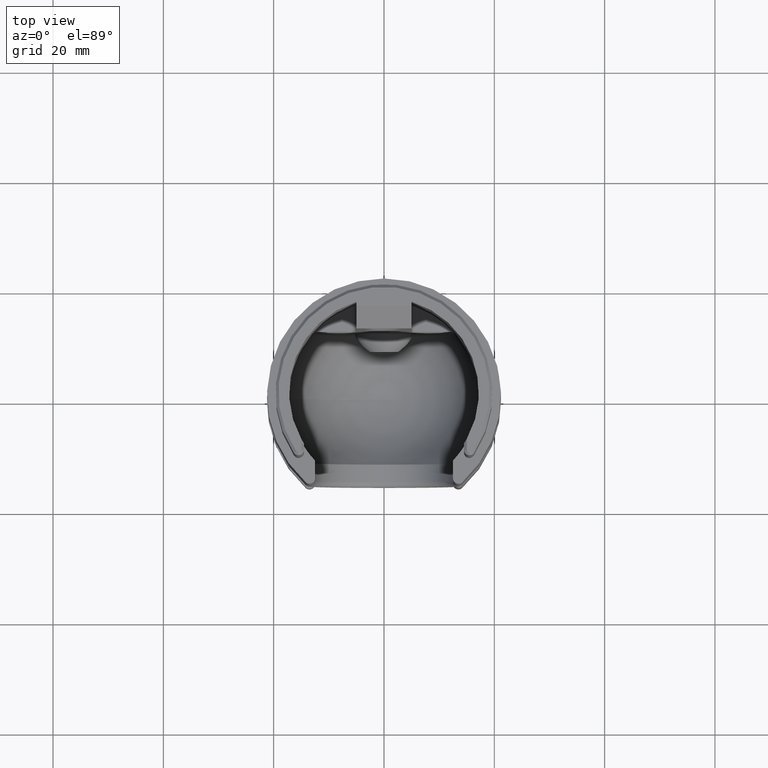
[diagram: clean part render]
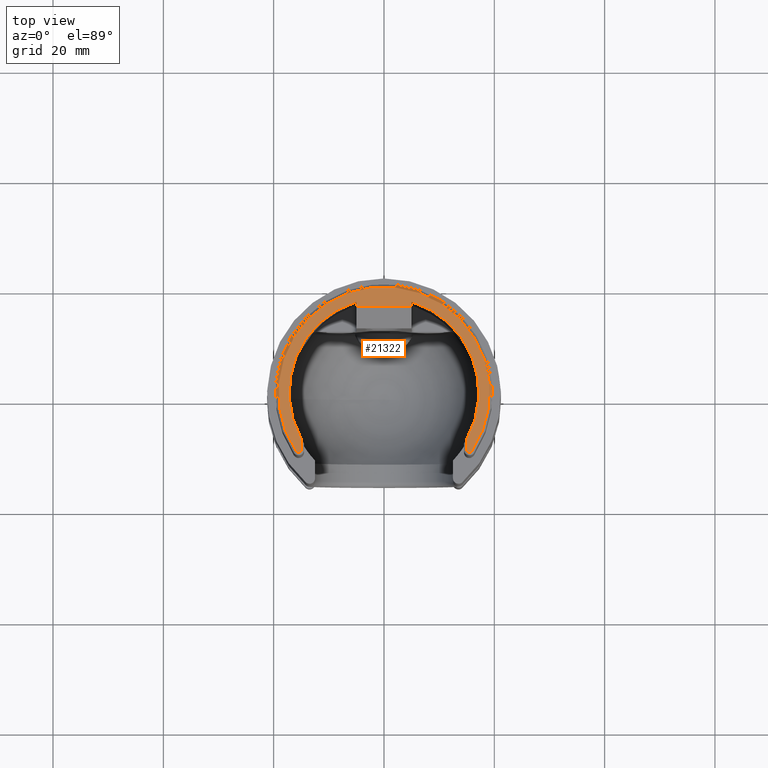
[diagram: same view with one face highlighted and labeled with its STEP entity id]
A machine part, top view. The second image highlights one B-rep face of the part: STEP entity #21322.
In plain terms, the highlighted planar face has unit normal (0, 0, 1).
Its self-contained STEP definition (entity closure, byte-faithful):
#6 = CIRCLE ( 'NONE', #10359, 17.19999999999999900 ) ;
#411 = EDGE_CURVE ( 'NONE', #12763, #12374, #8606, .T. ) ;
#906 = AXIS2_PLACEMENT_3D ( 'NONE', #20028, #3437, #8738 ) ;
#1831 = ORIENTED_EDGE ( 'NONE', *, *, #411, .T. ) ;
#1948 = DIRECTION ( 'NONE',  ( 1.823254415905704100E-016, 1.000000000000000000, 0.0000000000000000000 ) ) ;
#2000 = EDGE_CURVE ( 'NONE', #12374, #10745, #15247, .T. ) ;
#2079 = DIRECTION ( 'NONE',  ( -0.0000000000000000000, -0.0000000000000000000, -1.000000000000000000 ) ) ;
#2757 = CIRCLE ( 'NONE', #10512, 17.19999999999999900 ) ;
#2925 = LINE ( 'NONE', #22764, #13710 ) ;
#3225 = EDGE_CURVE ( 'NONE', #7140, #5146, #9975, .T. ) ;
#3437 = DIRECTION ( 'NONE',  ( 0.0000000000000000000, 0.0000000000000000000, 1.000000000000000000 ) ) ;
#3583 = VECTOR ( 'NONE', #1948, 1000.000000000000000 ) ;
#3824 = DIRECTION ( 'NONE',  ( 1.823254415905704100E-016, -1.000000000000000000, 0.0000000000000000000 ) ) ;
#4552 = CARTESIAN_POINT ( 'NONE',  ( 5.000000000000000900, 16.45721726173656700, 30.00000000000000000 ) ) ;
#5146 = VERTEX_POINT ( 'NONE', #4552 ) ;
#5492 = ORIENTED_EDGE ( 'NONE', *, *, #8944, .T. ) ;
#5520 = DIRECTION ( 'NONE',  ( 1.000000000000000000, 0.0000000000000000000, 0.0000000000000000000 ) ) ;
#5892 = VERTEX_POINT ( 'NONE', #6465 ) ;
#6462 = VECTOR ( 'NONE', #15727, 1000.000000000000000 ) ;
#6465 = CARTESIAN_POINT ( 'NONE',  ( -5.000000000000000900, 16.45721726173656700, 30.00000000000000000 ) ) ;
#6829 = CARTESIAN_POINT ( 'NONE',  ( -15.50000000000000000, -10.37171634783751300, 30.00000000000000000 ) ) ;
#6899 = CARTESIAN_POINT ( 'NONE',  ( 5.000000000000000000, 11.70000000000000100, 30.00000000000000000 ) ) ;
#7140 = VERTEX_POINT ( 'NONE', #22645 ) ;
#7427 = CARTESIAN_POINT ( 'NONE',  ( -14.99999999999998600, -8.416650165000351800, 30.00000000000000000 ) ) ;
#7471 = CARTESIAN_POINT ( 'NONE',  ( 15.50000000000000000, -10.37171634783750700, 30.00000000000000000 ) ) ;
#7541 = LINE ( 'NONE', #19869, #15929 ) ;
#7542 = DIRECTION ( 'NONE',  ( 1.000000000000000000, 0.0000000000000000000, 0.0000000000000000000 ) ) ;
#7700 = PLANE ( 'NONE',  #10500 ) ;
#7782 = DIRECTION ( 'NONE',  ( 1.000000000000000000, 0.0000000000000000000, -0.0000000000000000000 ) ) ;
#7900 = CARTESIAN_POINT ( 'NONE',  ( 15.91554959785523600, -10.64977844831572700, 30.00000000000000000 ) ) ;
#8121 = ORIENTED_EDGE ( 'NONE', *, *, #2000, .T. ) ;
#8606 = CIRCLE ( 'NONE', #906, 19.14999999999999900 ) ;
#8688 = EDGE_CURVE ( 'NONE', #5146, #13610, #2757, .T. ) ;
#8738 = DIRECTION ( 'NONE',  ( 1.000000000000000000, 0.0000000000000000000, 0.0000000000000000000 ) ) ;
#8944 = EDGE_CURVE ( 'NONE', #19139, #12763, #15535, .T. ) ;
#8999 = CARTESIAN_POINT ( 'NONE',  ( 5.000000000000000000, 15.70000000000000600, 30.00000000000000000 ) ) ;
#9311 = VERTEX_POINT ( 'NONE', #15724 ) ;
#9340 = DIRECTION ( 'NONE',  ( 0.0000000000000000000, 0.0000000000000000000, 1.000000000000000000 ) ) ;
#9656 = DIRECTION ( 'NONE',  ( 1.000000000000000000, 0.0000000000000000000, 0.0000000000000000000 ) ) ;
#9901 = ORIENTED_EDGE ( 'NONE', *, *, #18783, .T. ) ;
#9975 = LINE ( 'NONE', #6899, #3583 ) ;
#10359 = AXIS2_PLACEMENT_3D ( 'NONE', #18649, #2079, #7542 ) ;
#10420 = LINE ( 'NONE', #8999, #13316 ) ;
#10500 = AXIS2_PLACEMENT_3D ( 'NONE', #20694, #15248, #7782 ) ;
#10512 = AXIS2_PLACEMENT_3D ( 'NONE', #14958, #20791, #9656 ) ;
#10745 = VERTEX_POINT ( 'NONE', #21851 ) ;
#12086 = CARTESIAN_POINT ( 'NONE',  ( -14.99999999999999300, -9.251486367065563600, 30.00000000000000000 ) ) ;
#12209 = DIRECTION ( 'NONE',  ( 0.0000000000000000000, 0.0000000000000000000, 1.000000000000000000 ) ) ;
#12374 = VERTEX_POINT ( 'NONE', #22855 ) ;
#12718 = EDGE_CURVE ( 'NONE', #5892, #9311, #2925, .T. ) ;
#12763 = VERTEX_POINT ( 'NONE', #7900 ) ;
#13316 = VECTOR ( 'NONE', #22017, 1000.000000000000000 ) ;
#13610 = VERTEX_POINT ( 'NONE', #23708 ) ;
#13710 = VECTOR ( 'NONE', #3824, 1000.000000000000000 ) ;
#14220 = EDGE_LOOP ( 'NONE', ( #14659, #14936, #17877, #23433, #14953, #5492, #1831, #8121, #9901, #16611 ) ) ;
#14659 = ORIENTED_EDGE ( 'NONE', *, *, #12718, .T. ) ;
#14936 = ORIENTED_EDGE ( 'NONE', *, *, #22899, .T. ) ;
#14953 = ORIENTED_EDGE ( 'NONE', *, *, #17741, .T. ) ;
#14958 = CARTESIAN_POINT ( 'NONE',  ( 0.0000000000000000000, 0.0000000000000000000, 30.00000000000000000 ) ) ;
#15247 = CIRCLE ( 'NONE', #16187, 0.5000000000000073300 ) ;
#15248 = DIRECTION ( 'NONE',  ( 0.0000000000000000000, 0.0000000000000000000, 1.000000000000000000 ) ) ;
#15535 = CIRCLE ( 'NONE', #19026, 0.5000000000000073300 ) ;
#15724 = CARTESIAN_POINT ( 'NONE',  ( -5.000000000000000900, 15.70000000000000600, 30.00000000000000000 ) ) ;
#15727 = DIRECTION ( 'NONE',  ( 0.0000000000000000000, 1.000000000000000000, 0.0000000000000000000 ) ) ;
#15929 = VECTOR ( 'NONE', #16295, 1000.000000000000000 ) ;
#16187 = AXIS2_PLACEMENT_3D ( 'NONE', #6829, #12209, #23508 ) ;
#16295 = DIRECTION ( 'NONE',  ( 0.0000000000000000000, -1.000000000000000000, 0.0000000000000000000 ) ) ;
#16611 = ORIENTED_EDGE ( 'NONE', *, *, #20993, .T. ) ;
#17741 = EDGE_CURVE ( 'NONE', #13610, #19139, #7541, .T. ) ;
#17877 = ORIENTED_EDGE ( 'NONE', *, *, #3225, .T. ) ;
#18560 = CARTESIAN_POINT ( 'NONE',  ( 14.99999999999999300, -10.37171634783750700, 30.00000000000000000 ) ) ;
#18649 = CARTESIAN_POINT ( 'NONE',  ( 0.0000000000000000000, 0.0000000000000000000, 30.00000000000000000 ) ) ;
#18783 = EDGE_CURVE ( 'NONE', #10745, #23500, #22173, .T. ) ;
#19026 = AXIS2_PLACEMENT_3D ( 'NONE', #7471, #9340, #5520 ) ;
#19139 = VERTEX_POINT ( 'NONE', #18560 ) ;
#19869 = CARTESIAN_POINT ( 'NONE',  ( 14.99999999999999300, -10.37171634783750700, 30.00000000000000000 ) ) ;
#20028 = CARTESIAN_POINT ( 'NONE',  ( 0.0000000000000000000, 0.0000000000000000000, 30.00000000000000000 ) ) ;
#20694 = CARTESIAN_POINT ( 'NONE',  ( 0.0000000000000000000, 0.0000000000000000000, 30.00000000000000000 ) ) ;
#20791 = DIRECTION ( 'NONE',  ( -0.0000000000000000000, -0.0000000000000000000, -1.000000000000000000 ) ) ;
#20908 = FACE_OUTER_BOUND ( 'NONE', #14220, .T. ) ;
#20993 = EDGE_CURVE ( 'NONE', #23500, #5892, #6, .T. ) ;
#21322 = ADVANCED_FACE ( 'NONE', ( #20908 ), #7700, .T. ) ;
#21851 = CARTESIAN_POINT ( 'NONE',  ( -14.99999999999999300, -10.37171634783751300, 30.00000000000000000 ) ) ;
#22017 = DIRECTION ( 'NONE',  ( 1.000000000000000000, 0.0000000000000000000, 0.0000000000000000000 ) ) ;
#22173 = LINE ( 'NONE', #12086, #6462 ) ;
#22645 = CARTESIAN_POINT ( 'NONE',  ( 5.000000000000000900, 15.70000000000000600, 30.00000000000000000 ) ) ;
#22764 = CARTESIAN_POINT ( 'NONE',  ( -5.000000000000000900, 16.45721726173656700, 30.00000000000000000 ) ) ;
#22855 = CARTESIAN_POINT ( 'NONE',  ( -15.91554959785523200, -10.64977844831573100, 30.00000000000000000 ) ) ;
#22899 = EDGE_CURVE ( 'NONE', #9311, #7140, #10420, .T. ) ;
#23433 = ORIENTED_EDGE ( 'NONE', *, *, #8688, .T. ) ;
#23500 = VERTEX_POINT ( 'NONE', #7427 ) ;
#23508 = DIRECTION ( 'NONE',  ( 1.000000000000000000, 0.0000000000000000000, 0.0000000000000000000 ) ) ;
#23708 = CARTESIAN_POINT ( 'NONE',  ( 14.99999999999998600, -8.416650165000351800, 30.00000000000000000 ) ) ;